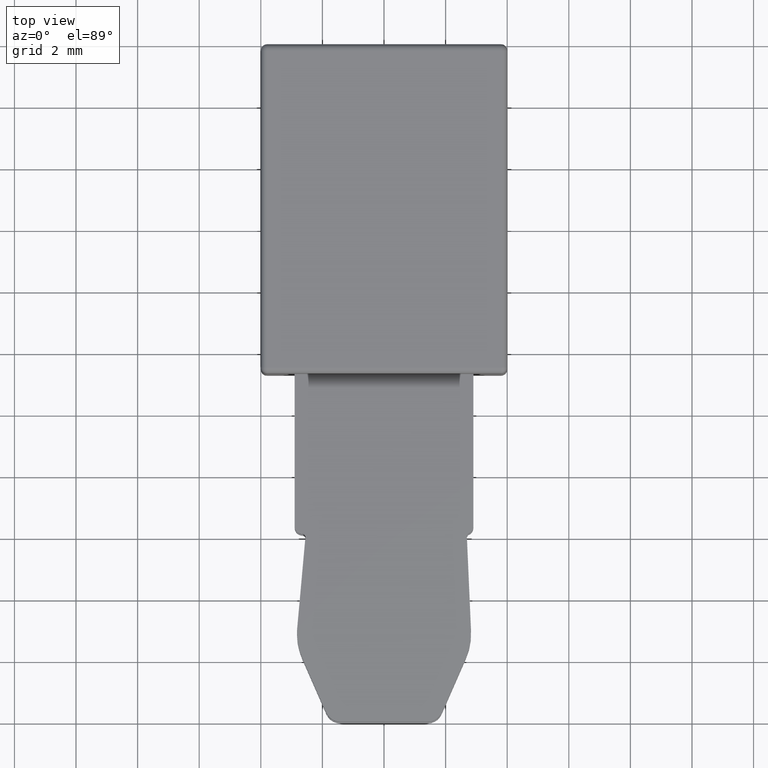
[diagram: clean part render]
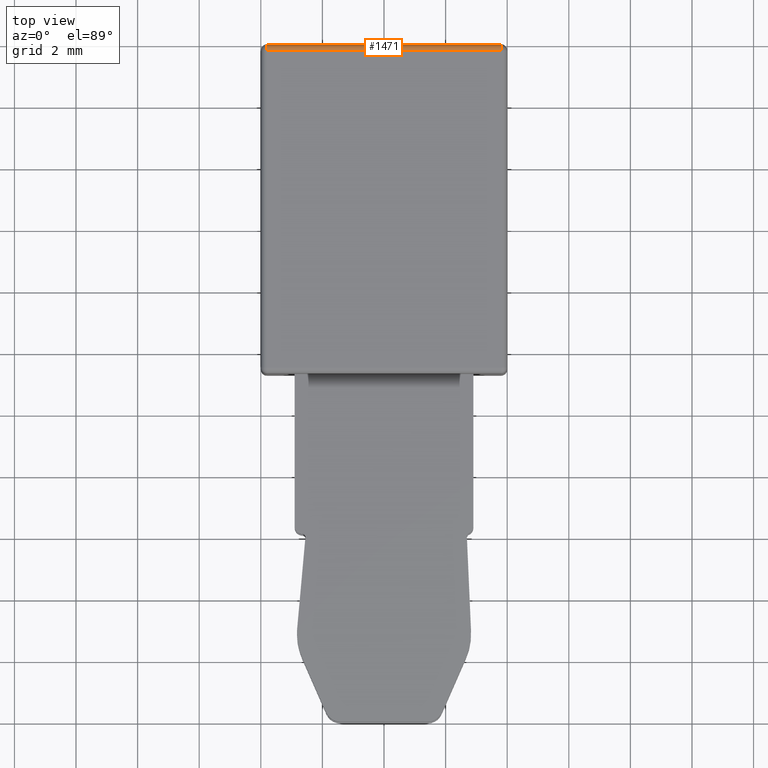
[diagram: same view with one face highlighted and labeled with its STEP entity id]
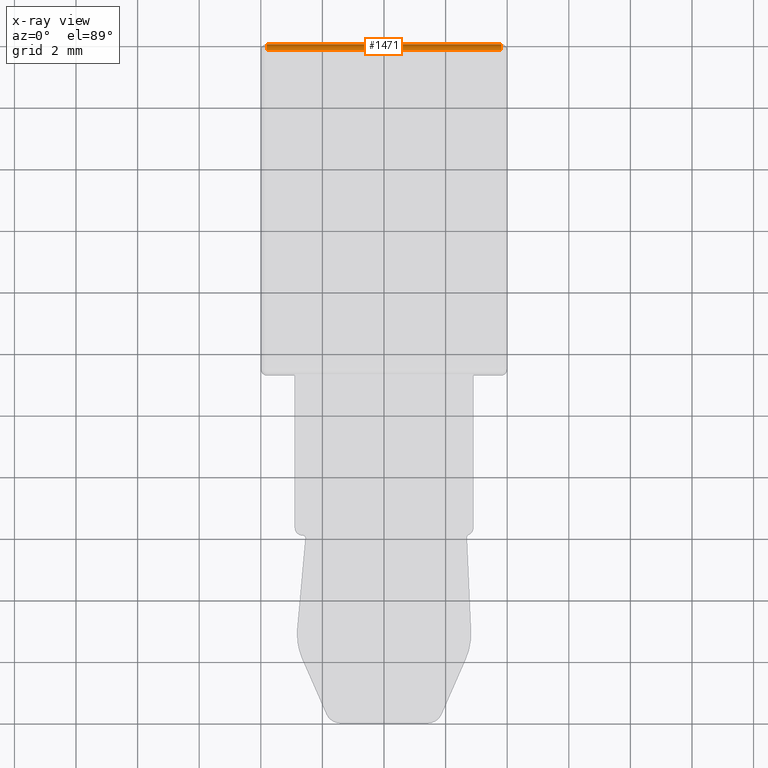
[diagram: x-ray of the same camera — body ghosted, the highlighted face saturated]
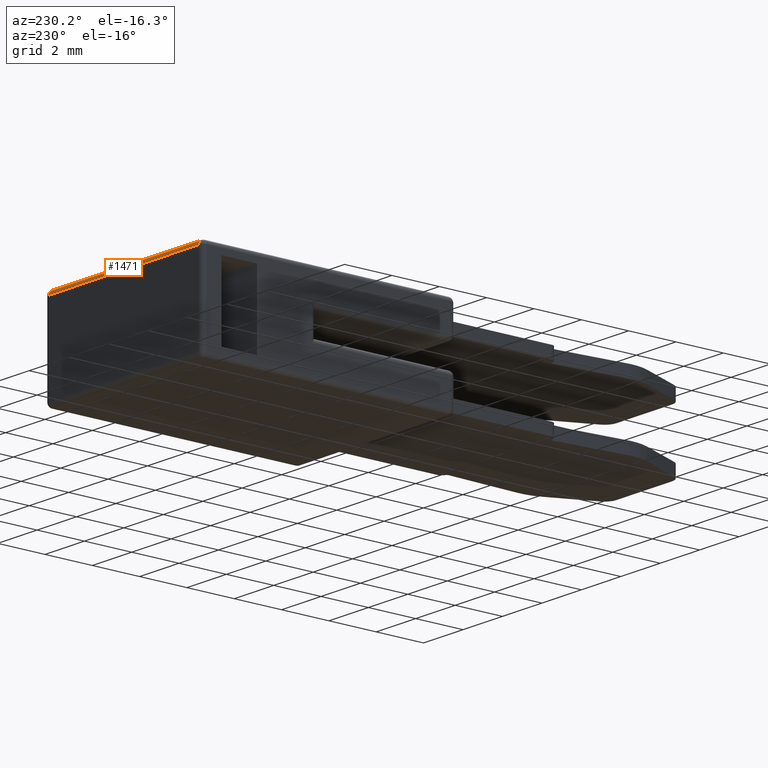
[diagram: same view with one face highlighted and labeled with its STEP entity id]
A machine part, top view. The second image highlights one B-rep face of the part: STEP entity #1471.
The next image is the same camera in x-ray: the body ghosted, the highlighted face saturated — about 0% of this face is hidden behind the body in this view.
A second angle (auxiliary view) of the same face is appended — the face is thin or edge-on in the first view.
In plain terms, the highlighted cylindrical surface (edge-blend (fillet) strip) has radius 0.2 mm, axis along (1, 0, 0).
Its self-contained STEP definition (entity closure, byte-faithful):
#109=CARTESIAN_POINT('',(-3.799999999165E0,1.180449986933E1,1.799999999179E0));
#110=DIRECTION('',(-1.E0,0.E0,0.E0));
#111=DIRECTION('',(0.E0,-1.586966114075E-8,1.E0));
#112=AXIS2_PLACEMENT_3D('',#109,#110,#111);
#124=DIRECTION('',(-1.E0,0.E0,0.E0));
#125=VECTOR('',#124,7.599999999359E0);
#126=CARTESIAN_POINT('',(3.800000000194E0,1.200449986889E1,1.799999999179E0));
#127=LINE('',#126,#125);
#128=DIRECTION('',(1.E0,-2.490265304518E-11,0.E0));
#129=VECTOR('',#128,7.599999998140E0);
#130=CARTESIAN_POINT('',(-3.799999998555E0,1.180449986706E1,1.999999999602E0));
#131=LINE('',#130,#129);
#326=CARTESIAN_POINT('',(3.800000000195E0,1.180449986933E1,1.799999999179E0));
#327=DIRECTION('',(1.E0,0.E0,0.E0));
#328=DIRECTION('',(0.E0,1.E0,0.E0));
#329=AXIS2_PLACEMENT_3D('',#326,#327,#328);
#1135=CARTESIAN_POINT('',(3.800000000194E0,1.200449986889E1,1.799999999179E0));
#1136=VERTEX_POINT('',#1135);
#1145=CARTESIAN_POINT('',(-3.799999998555E0,1.180449986706E1,1.999999999602E0));
#1146=CARTESIAN_POINT('',(3.799999999585E0,1.180449986687E1,1.999999999602E0));
#1147=VERTEX_POINT('',#1145);
#1148=VERTEX_POINT('',#1146);
#1194=CARTESIAN_POINT('',(-3.799999999165E0,1.200449986933E1,1.799999999179E0));
#1195=VERTEX_POINT('',#1194);
#1457=CARTESIAN_POINT('',(-3.999999997945E0,1.180449986870E1,1.799999999179E0));
#1458=DIRECTION('',(1.E0,0.E0,0.E0));
#1459=DIRECTION('',(0.E0,0.E0,-1.E0));
#1460=AXIS2_PLACEMENT_3D('',#1457,#1458,#1459);
#1461=CYLINDRICAL_SURFACE('',#1460,2.000000000488E-1);
#1463=ORIENTED_EDGE('',*,*,#1462,.F.);
#1465=ORIENTED_EDGE('',*,*,#1464,.T.);
#1467=ORIENTED_EDGE('',*,*,#1466,.F.);
#1468=ORIENTED_EDGE('',*,*,#1449,.T.);
#1469=EDGE_LOOP('',(#1463,#1465,#1467,#1468));
#1470=FACE_OUTER_BOUND('',#1469,.F.);
#1471=ADVANCED_FACE('',(#1470),#1461,.T.);
#113=CIRCLE('',#112,2.E-1);
#330=CIRCLE('',#329,2.E-1);
#1449=EDGE_CURVE('',#1147,#1195,#113,.T.);
#1462=EDGE_CURVE('',#1136,#1195,#127,.T.);
#1464=EDGE_CURVE('',#1136,#1148,#330,.T.);
#1466=EDGE_CURVE('',#1147,#1148,#131,.T.);